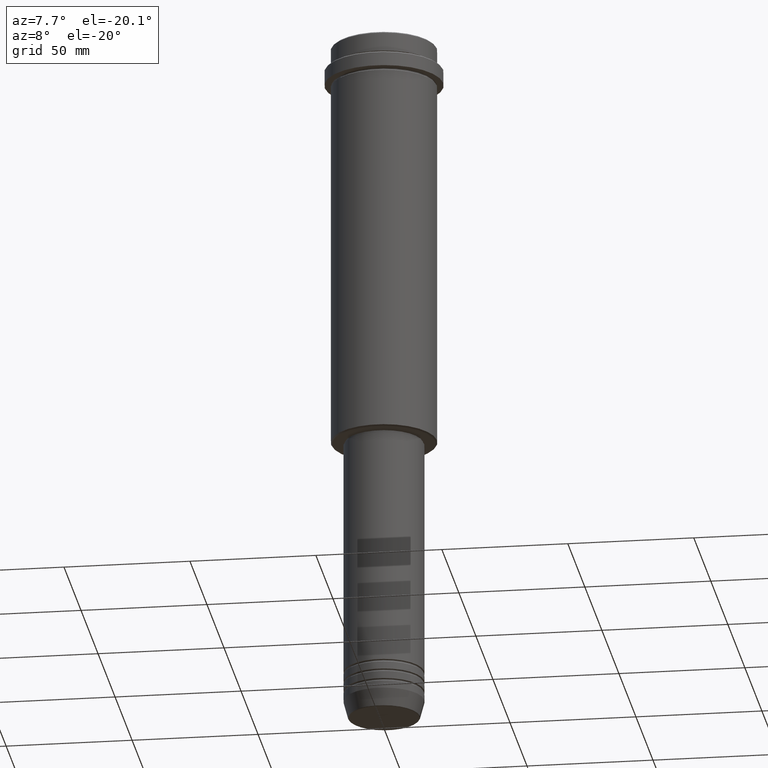
[diagram: clean part render]
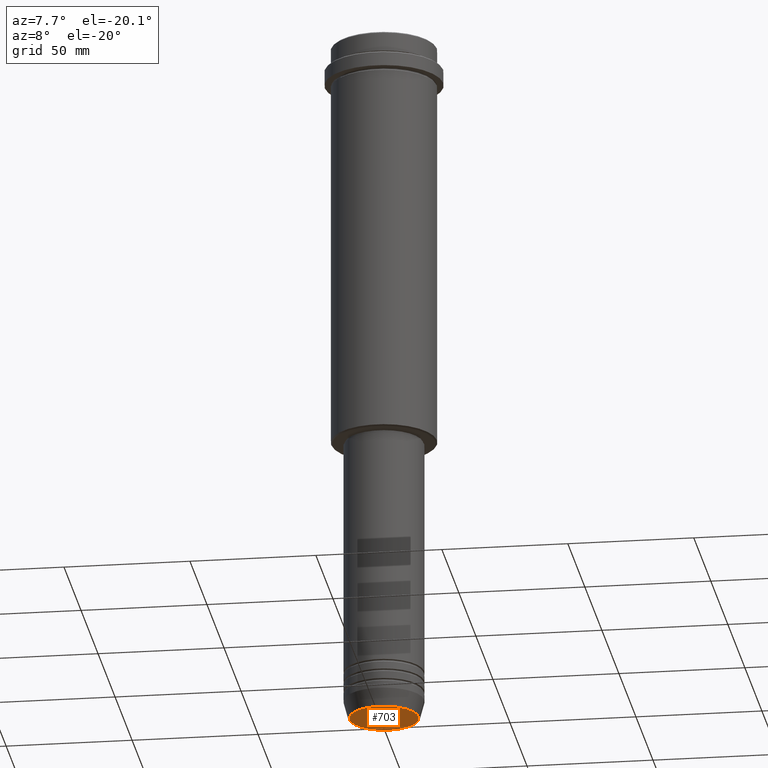
[diagram: same view with one face highlighted and labeled with its STEP entity id]
A machine part, auxiliary view. The second image highlights one B-rep face of the part: STEP entity #703.
In plain terms, the highlighted planar face has unit normal (0, -0, 1).
Its self-contained STEP definition (entity closure, byte-faithful):
#96 = EDGE_CURVE ( 'NONE', #406, #805, #1007, .T. ) ;
#147 = EDGE_CURVE ( 'NONE', #805, #406, #899, .T. ) ;
#238 = FACE_OUTER_BOUND ( 'NONE', #303, .T. ) ;
#245 = PLANE ( 'NONE',  #767 ) ;
#263 = DIRECTION ( 'NONE',  ( 1.000000000000000000, 0.000000000000000000, 0.000000000000000000 ) ) ;
#303 = EDGE_LOOP ( 'NONE', ( #863, #1326 ) ) ;
#406 = VERTEX_POINT ( 'NONE', #1137 ) ;
#675 = DIRECTION ( 'NONE',  ( 0.000000000000000000, -0.000000000000000000, 1.000000000000000000 ) ) ;
#703 = ADVANCED_FACE ( 'NONE', ( #238 ), #245, .F. ) ;
#704 = DIRECTION ( 'NONE',  ( 0.000000000000000000, 0.000000000000000000, -1.000000000000000000 ) ) ;
#767 = AXIS2_PLACEMENT_3D ( 'NONE', #988, #675, #1184 ) ;
#799 = DIRECTION ( 'NONE',  ( 0.000000000000000000, 0.000000000000000000, -1.000000000000000000 ) ) ;
#805 = VERTEX_POINT ( 'NONE', #900 ) ;
#807 = AXIS2_PLACEMENT_3D ( 'NONE', #1345, #799, #1225 ) ;
#826 = AXIS2_PLACEMENT_3D ( 'NONE', #1019, #704, #263 ) ;
#863 = ORIENTED_EDGE ( 'NONE', *, *, #147, .T. ) ;
#899 = CIRCLE ( 'NONE', #807, 13.74069215899265828 ) ;
#900 = CARTESIAN_POINT ( 'NONE',  ( 13.74069215899265828, 0.000000000000000000, -280.0000000000000000 ) ) ;
#988 = CARTESIAN_POINT ( 'NONE',  ( 0.000000000000000000, 0.000000000000000000, -280.0000000000000000 ) ) ;
#1007 = CIRCLE ( 'NONE', #826, 13.74069215899265828 ) ;
#1019 = CARTESIAN_POINT ( 'NONE',  ( 0.000000000000000000, 0.000000000000000000, -280.0000000000000000 ) ) ;
#1137 = CARTESIAN_POINT ( 'NONE',  ( -13.74069215899265828, 1.712322416342415986E-15, -280.0000000000000000 ) ) ;
#1184 = DIRECTION ( 'NONE',  ( 1.000000000000000000, 0.000000000000000000, 0.000000000000000000 ) ) ;
#1225 = DIRECTION ( 'NONE',  ( 1.000000000000000000, 0.000000000000000000, 0.000000000000000000 ) ) ;
#1326 = ORIENTED_EDGE ( 'NONE', *, *, #96, .T. ) ;
#1345 = CARTESIAN_POINT ( 'NONE',  ( 0.000000000000000000, 0.000000000000000000, -280.0000000000000000 ) ) ;